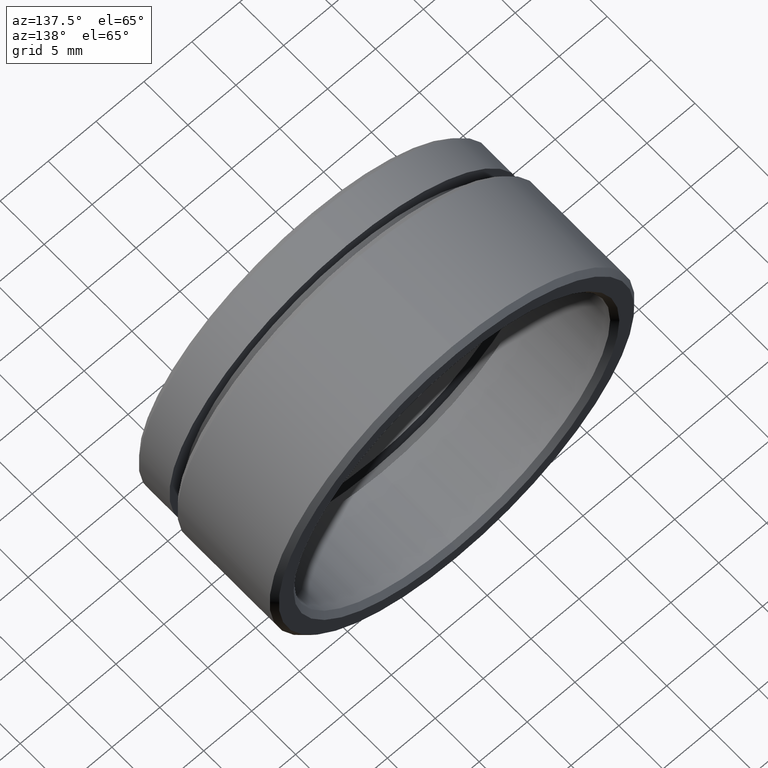
[diagram: clean part render]
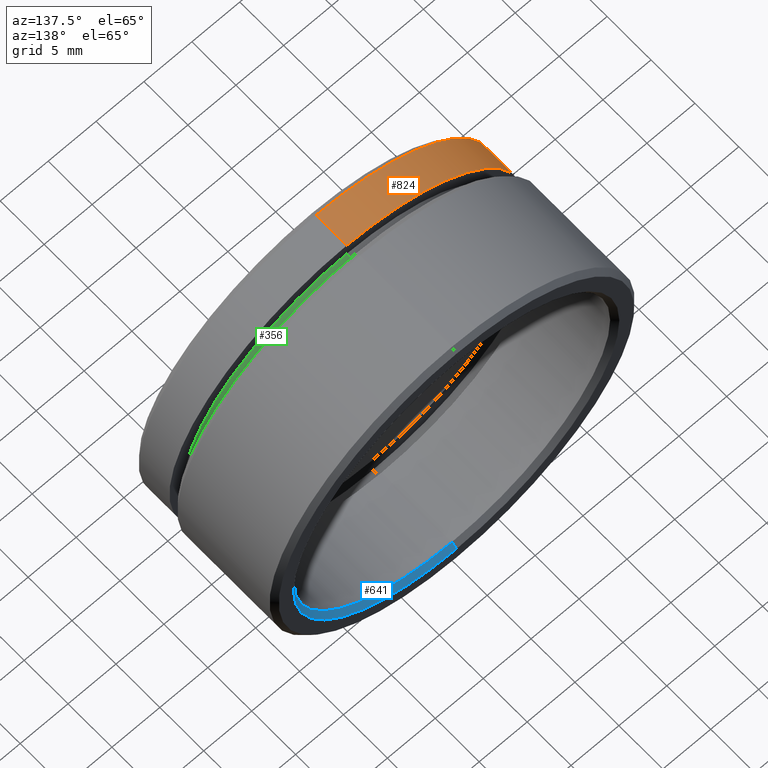
[diagram: same view with three faces highlighted in distinct colors, each labeled with its STEP entity id]
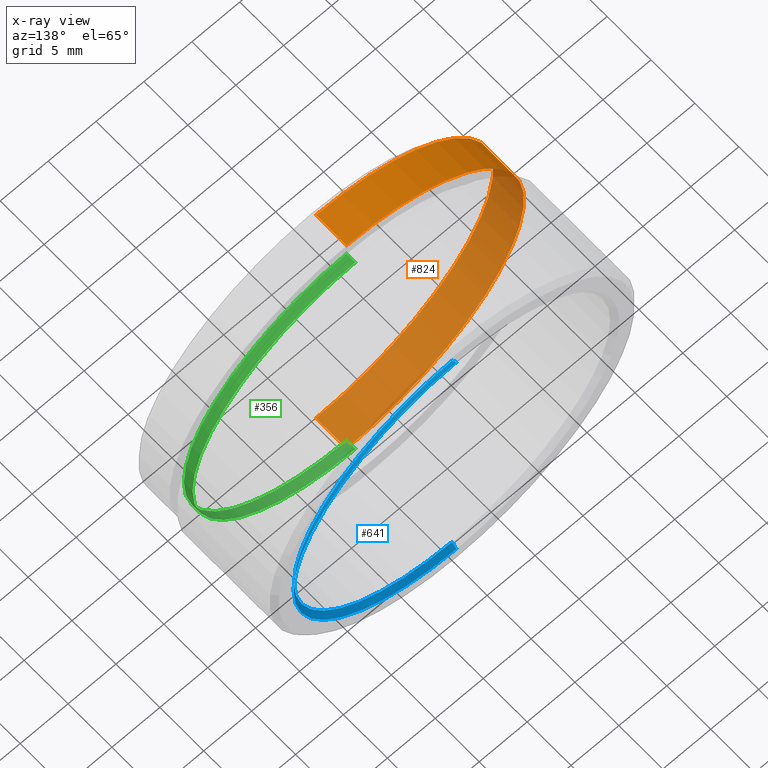
[diagram: x-ray of the same camera — body ghosted, the three highlighted faces saturated]
A machine part, auxiliary view with three faces highlighted in distinct colors.
The next image is the same camera in x-ray (body ghosted, the three faces saturated) — at least one of them is partly hidden behind the body in this view.
Their STEP definitions:

[orange] entity #824 — the highlighted cylindrical surface (partial cylindrical patch) has radius 18.5 mm, axis along (-0, -1, -0).
#2 = ORIENTED_EDGE ( 'NONE', *, *, #238, .T. ) ;
#36 = CARTESIAN_POINT ( 'NONE',  ( 2.265596578422603800E-015, 0.5000000000000038900, 18.50000000000000400 ) ) ;
#144 = VERTEX_POINT ( 'NONE', #36 ) ;
#155 = CARTESIAN_POINT ( 'NONE',  ( 0.0000000000000000000, 4.000000000000000900, -18.50000000000000400 ) ) ;
#163 = VECTOR ( 'NONE', #516, 1000.000000000000000 ) ;
#169 = AXIS2_PLACEMENT_3D ( 'NONE', #836, #424, #401 ) ;
#176 = CYLINDRICAL_SURFACE ( 'NONE', #190, 18.50000000000000400 ) ;
#190 = AXIS2_PLACEMENT_3D ( 'NONE', #680, #237, #608 ) ;
#201 = CIRCLE ( 'NONE', #169, 18.50000000000000400 ) ;
#212 = CARTESIAN_POINT ( 'NONE',  ( 0.0000000000000000000, 0.5000000000000038900, -18.50000000000000400 ) ) ;
#227 = CARTESIAN_POINT ( 'NONE',  ( 0.0000000000000000000, 0.5000000000000038900, 0.0000000000000000000 ) ) ;
#230 = DIRECTION ( 'NONE',  ( 0.0000000000000000000, 1.000000000000000000, 0.0000000000000000000 ) ) ;
#234 = DIRECTION ( 'NONE',  ( 0.0000000000000000000, 0.0000000000000000000, -1.000000000000000000 ) ) ;
#237 = DIRECTION ( 'NONE',  ( -0.0000000000000000000, -1.000000000000000000, -0.0000000000000000000 ) ) ;
#238 = EDGE_CURVE ( 'NONE', #652, #521, #201, .T. ) ;
#309 = FACE_OUTER_BOUND ( 'NONE', #417, .T. ) ;
#312 = CARTESIAN_POINT ( 'NONE',  ( 2.265596578422603800E-015, 0.0000000000000000000, 18.50000000000000400 ) ) ;
#338 = CARTESIAN_POINT ( 'NONE',  ( 2.265596578422603800E-015, 4.000000000000000900, 18.50000000000000400 ) ) ;
#345 = DIRECTION ( 'NONE',  ( -0.0000000000000000000, -1.000000000000000000, -0.0000000000000000000 ) ) ;
#394 = LINE ( 'NONE', #560, #163 ) ;
#401 = DIRECTION ( 'NONE',  ( 0.0000000000000000000, 0.0000000000000000000, -1.000000000000000000 ) ) ;
#417 = EDGE_LOOP ( 'NONE', ( #698, #2, #769, #426 ) ) ;
#424 = DIRECTION ( 'NONE',  ( -0.0000000000000000000, -1.000000000000000000, -0.0000000000000000000 ) ) ;
#426 = ORIENTED_EDGE ( 'NONE', *, *, #623, .T. ) ;
#516 = DIRECTION ( 'NONE',  ( -0.0000000000000000000, -1.000000000000000000, -0.0000000000000000000 ) ) ;
#521 = VERTEX_POINT ( 'NONE', #155 ) ;
#560 = CARTESIAN_POINT ( 'NONE',  ( 0.0000000000000000000, 0.0000000000000000000, -18.50000000000000400 ) ) ;
#594 = VERTEX_POINT ( 'NONE', #212 ) ;
#608 = DIRECTION ( 'NONE',  ( 0.0000000000000000000, 0.0000000000000000000, -1.000000000000000000 ) ) ;
#613 = VECTOR ( 'NONE', #345, 1000.000000000000000 ) ;
#623 = EDGE_CURVE ( 'NONE', #594, #144, #696, .T. ) ;
#652 = VERTEX_POINT ( 'NONE', #338 ) ;
#656 = EDGE_CURVE ( 'NONE', #652, #144, #666, .T. ) ;
#666 = LINE ( 'NONE', #312, #613 ) ;
#680 = CARTESIAN_POINT ( 'NONE',  ( 0.0000000000000000000, 0.0000000000000000000, 0.0000000000000000000 ) ) ;
#696 = CIRCLE ( 'NONE', #795, 18.50000000000000400 ) ;
#698 = ORIENTED_EDGE ( 'NONE', *, *, #656, .F. ) ;
#769 = ORIENTED_EDGE ( 'NONE', *, *, #785, .T. ) ;
#785 = EDGE_CURVE ( 'NONE', #521, #594, #394, .T. ) ;
#795 = AXIS2_PLACEMENT_3D ( 'NONE', #227, #230, #234 ) ;
#824 = ADVANCED_FACE ( 'NONE', ( #309 ), #176, .T. ) ;
#836 = CARTESIAN_POINT ( 'NONE',  ( 0.0000000000000000000, 4.000000000000000900, 0.0000000000000000000 ) ) ;

[blue] entity #641 — the highlighted conical surface has half-angle 45 deg.
#3 = EDGE_LOOP ( 'NONE', ( #55, #191, #33, #820 ) ) ;
#15 = CARTESIAN_POINT ( 'NONE',  ( 0.0000000000000000000, 16.50000000000000000, 17.00000000000000400 ) ) ;
#20 = DIRECTION ( 'NONE',  ( 0.0000000000000000000, 0.7071067811865474600, 0.7071067811865474600 ) ) ;
#33 = ORIENTED_EDGE ( 'NONE', *, *, #386, .T. ) ;
#55 = ORIENTED_EDGE ( 'NONE', *, *, #865, .F. ) ;
#109 = DIRECTION ( 'NONE',  ( 0.0000000000000000000, 0.0000000000000000000, 1.000000000000000000 ) ) ;
#129 = VECTOR ( 'NONE', #631, 1000.000000000000100 ) ;
#140 = EDGE_CURVE ( 'NONE', #711, #754, #491, .T. ) ;
#181 = DIRECTION ( 'NONE',  ( -0.0000000000000000000, -1.000000000000000000, -0.0000000000000000000 ) ) ;
#182 = CARTESIAN_POINT ( 'NONE',  ( 0.0000000000000000000, 16.50000000000000000, 17.00000000000000400 ) ) ;
#184 = AXIS2_PLACEMENT_3D ( 'NONE', #806, #181, #109 ) ;
#191 = ORIENTED_EDGE ( 'NONE', *, *, #140, .F. ) ;
#203 = CIRCLE ( 'NONE', #184, 17.00000000000000400 ) ;
#211 = CARTESIAN_POINT ( 'NONE',  ( 2.081899558550500700E-015, 16.50000000000000000, -17.00000000000000400 ) ) ;
#228 = EDGE_CURVE ( 'NONE', #593, #583, #203, .T. ) ;
#272 = CARTESIAN_POINT ( 'NONE',  ( 0.0000000000000000000, 16.50000000000000000, 0.0000000000000000000 ) ) ;
#273 = DIRECTION ( 'NONE',  ( 0.0000000000000000000, 0.0000000000000000000, 1.000000000000000000 ) ) ;
#293 = DIRECTION ( 'NONE',  ( -0.0000000000000000000, 1.000000000000000000, -0.0000000000000000000 ) ) ;
#303 = DIRECTION ( 'NONE',  ( -0.0000000000000000000, 1.000000000000000000, -0.0000000000000000000 ) ) ;
#343 = AXIS2_PLACEMENT_3D ( 'NONE', #464, #293, #421 ) ;
#346 = LINE ( 'NONE', #15, #807 ) ;
#386 = EDGE_CURVE ( 'NONE', #711, #583, #346, .T. ) ;
#396 = FACE_OUTER_BOUND ( 'NONE', #3, .T. ) ;
#402 = CARTESIAN_POINT ( 'NONE',  ( 2.020667218593133100E-015, 15.99999999999999600, 16.50000000000000000 ) ) ;
#412 = CARTESIAN_POINT ( 'NONE',  ( 0.0000000000000000000, 15.99999999999999600, -16.50000000000000000 ) ) ;
#421 = DIRECTION ( 'NONE',  ( 0.0000000000000000000, 0.0000000000000000000, 1.000000000000000000 ) ) ;
#464 = CARTESIAN_POINT ( 'NONE',  ( 0.0000000000000000000, 15.99999999999999600, 0.0000000000000000000 ) ) ;
#491 = CIRCLE ( 'NONE', #343, 16.50000000000000000 ) ;
#583 = VERTEX_POINT ( 'NONE', #182 ) ;
#593 = VERTEX_POINT ( 'NONE', #211 ) ;
#609 = LINE ( 'NONE', #653, #129 ) ;
#619 = CONICAL_SURFACE ( 'NONE', #672, 17.00000000000000400, 0.7853981633974482800 ) ;
#631 = DIRECTION ( 'NONE',  ( 8.659560562354932900E-017, 0.7071067811865474600, -0.7071067811865474600 ) ) ;
#641 = ADVANCED_FACE ( 'NONE', ( #396 ), #619, .F. ) ;
#653 = CARTESIAN_POINT ( 'NONE',  ( 2.081899558550500700E-015, 16.50000000000000000, -17.00000000000000400 ) ) ;
#672 = AXIS2_PLACEMENT_3D ( 'NONE', #272, #303, #273 ) ;
#711 = VERTEX_POINT ( 'NONE', #402 ) ;
#754 = VERTEX_POINT ( 'NONE', #412 ) ;
#806 = CARTESIAN_POINT ( 'NONE',  ( 0.0000000000000000000, 16.50000000000000000, 0.0000000000000000000 ) ) ;
#807 = VECTOR ( 'NONE', #20, 1000.000000000000100 ) ;
#820 = ORIENTED_EDGE ( 'NONE', *, *, #228, .F. ) ;
#865 = EDGE_CURVE ( 'NONE', #754, #593, #609, .T. ) ;

[green] entity #356 — the highlighted cylindrical surface (partial cylindrical patch) has radius 17 mm, axis along (-0, -1, -0).
#7 = DIRECTION ( 'NONE',  ( -0.0000000000000000000, -1.000000000000000000, -0.0000000000000000000 ) ) ;
#31 = EDGE_CURVE ( 'NONE', #639, #43, #146, .T. ) ;
#40 = DIRECTION ( 'NONE',  ( -0.0000000000000000000, -1.000000000000000000, -0.0000000000000000000 ) ) ;
#43 = VERTEX_POINT ( 'NONE', #174 ) ;
#56 = CARTESIAN_POINT ( 'NONE',  ( 0.0000000000000000000, 0.0000000000000000000, -17.00000000000000000 ) ) ;
#70 = AXIS2_PLACEMENT_3D ( 'NONE', #716, #123, #846 ) ;
#79 = CARTESIAN_POINT ( 'NONE',  ( 0.0000000000000000000, 5.000000000000000000, -17.00000000000000000 ) ) ;
#123 = DIRECTION ( 'NONE',  ( -0.0000000000000000000, -1.000000000000000000, -0.0000000000000000000 ) ) ;
#125 = DIRECTION ( 'NONE',  ( 0.0000000000000000000, 0.0000000000000000000, -1.000000000000000000 ) ) ;
#146 = LINE ( 'NONE', #340, #175 ) ;
#174 = CARTESIAN_POINT ( 'NONE',  ( 2.081899558550500300E-015, 4.000000000000000000, 17.00000000000000000 ) ) ;
#175 = VECTOR ( 'NONE', #773, 1000.000000000000000 ) ;
#250 = CIRCLE ( 'NONE', #70, 17.00000000000000000 ) ;
#282 = VERTEX_POINT ( 'NONE', #468 ) ;
#289 = CARTESIAN_POINT ( 'NONE',  ( 2.081899558550500300E-015, 5.000000000000000000, 17.00000000000000000 ) ) ;
#301 = ORIENTED_EDGE ( 'NONE', *, *, #447, .F. ) ;
#317 = EDGE_CURVE ( 'NONE', #282, #43, #250, .T. ) ;
#340 = CARTESIAN_POINT ( 'NONE',  ( 2.081899558550500300E-015, 0.0000000000000000000, 17.00000000000000000 ) ) ;
#356 = ADVANCED_FACE ( 'NONE', ( #833 ), #810, .T. ) ;
#420 = ORIENTED_EDGE ( 'NONE', *, *, #31, .T. ) ;
#445 = CARTESIAN_POINT ( 'NONE',  ( 0.0000000000000000000, 5.000000000000000000, 0.0000000000000000000 ) ) ;
#447 = EDGE_CURVE ( 'NONE', #452, #282, #789, .T. ) ;
#448 = DIRECTION ( 'NONE',  ( -0.0000000000000000000, -1.000000000000000000, -0.0000000000000000000 ) ) ;
#449 = DIRECTION ( 'NONE',  ( 0.0000000000000000000, 0.0000000000000000000, -1.000000000000000000 ) ) ;
#452 = VERTEX_POINT ( 'NONE', #79 ) ;
#468 = CARTESIAN_POINT ( 'NONE',  ( 0.0000000000000000000, 4.000000000000000000, -17.00000000000000000 ) ) ;
#501 = CARTESIAN_POINT ( 'NONE',  ( 0.0000000000000000000, 0.0000000000000000000, 0.0000000000000000000 ) ) ;
#511 = AXIS2_PLACEMENT_3D ( 'NONE', #501, #7, #125 ) ;
#564 = CIRCLE ( 'NONE', #573, 17.00000000000000000 ) ;
#573 = AXIS2_PLACEMENT_3D ( 'NONE', #445, #448, #449 ) ;
#617 = ORIENTED_EDGE ( 'NONE', *, *, #731, .T. ) ;
#639 = VERTEX_POINT ( 'NONE', #289 ) ;
#716 = CARTESIAN_POINT ( 'NONE',  ( 0.0000000000000000000, 4.000000000000000000, 0.0000000000000000000 ) ) ;
#731 = EDGE_CURVE ( 'NONE', #452, #639, #564, .T. ) ;
#773 = DIRECTION ( 'NONE',  ( -0.0000000000000000000, -1.000000000000000000, -0.0000000000000000000 ) ) ;
#789 = LINE ( 'NONE', #56, #809 ) ;
#809 = VECTOR ( 'NONE', #40, 1000.000000000000000 ) ;
#810 = CYLINDRICAL_SURFACE ( 'NONE', #511, 17.00000000000000000 ) ;
#818 = EDGE_LOOP ( 'NONE', ( #617, #420, #854, #301 ) ) ;
#833 = FACE_OUTER_BOUND ( 'NONE', #818, .T. ) ;
#846 = DIRECTION ( 'NONE',  ( 0.0000000000000000000, 0.0000000000000000000, -1.000000000000000000 ) ) ;
#854 = ORIENTED_EDGE ( 'NONE', *, *, #317, .F. ) ;